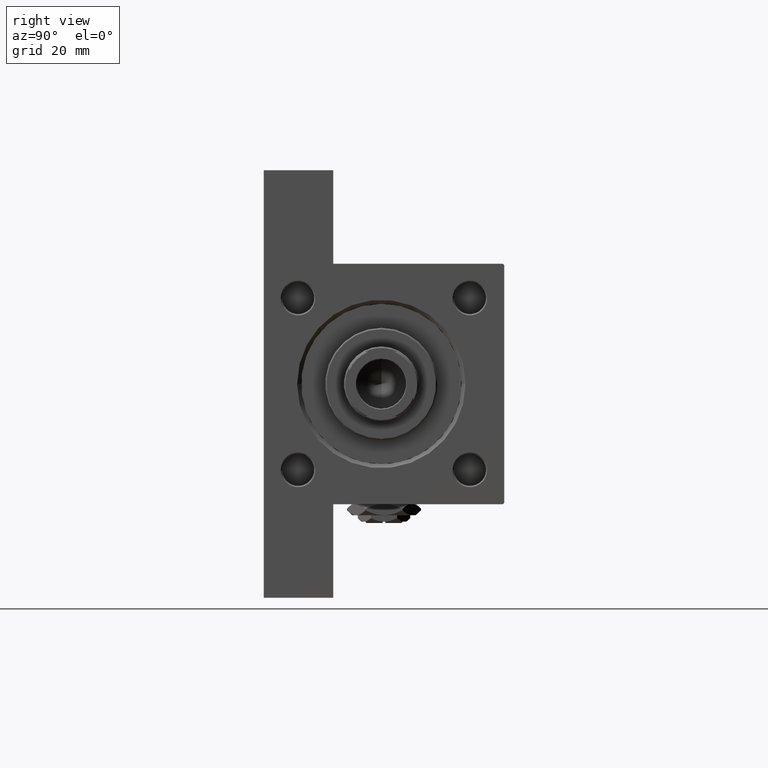
[diagram: clean part render]
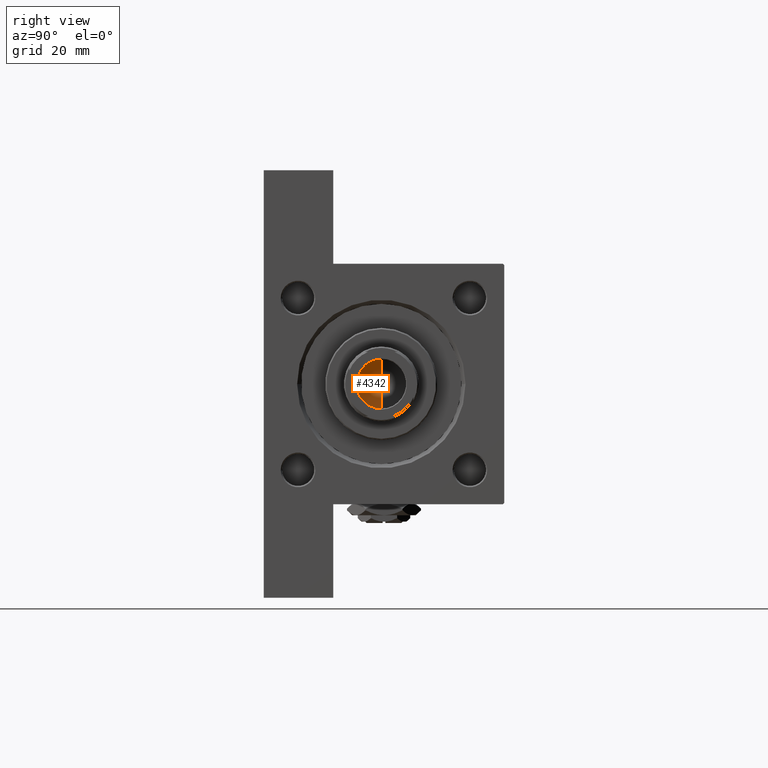
[diagram: same view with one face highlighted and labeled with its STEP entity id]
A machine part, right view. The second image highlights one B-rep face of the part: STEP entity #4342.
In plain terms, the highlighted conical surface has half-angle 59 deg.
Its self-contained STEP definition (entity closure, byte-faithful):
#1545 = AXIS2_PLACEMENT_3D ( 'NONE', #5830, #21184, #20440 ) ;
#3129 = CIRCLE ( 'NONE', #1545, 9.249999999999992895 ) ;
#3609 = VECTOR ( 'NONE', #19634, 1000.000000000000000 ) ;
#4271 = LINE ( 'NONE', #15860, #3609 ) ;
#4342 = ADVANCED_FACE ( 'NONE', ( #29970 ), #19587, .F. ) ;
#5830 = CARTESIAN_POINT ( 'NONE',  ( 0.000000000000000000, 0.000000000000000000, 114.9999999999999858 ) ) ;
#7275 = VERTEX_POINT ( 'NONE', #44915 ) ;
#7597 = DIRECTION ( 'NONE',  ( 1.000000000000000000, 0.000000000000000000, 0.000000000000000000 ) ) ;
#8486 = CARTESIAN_POINT ( 'NONE',  ( -9.249999999999992895, 1.132798289211300712E-15, 114.9999999999999858 ) ) ;
#12873 = ORIENTED_EDGE ( 'NONE', *, *, #45275, .T. ) ;
#15860 = CARTESIAN_POINT ( 'NONE',  ( -9.249999999999992895, 1.132798289211300712E-15, 114.9999999999999858 ) ) ;
#16535 = CARTESIAN_POINT ( 'NONE',  ( 9.249999999999992895, 0.000000000000000000, 114.9999999999999858 ) ) ;
#17315 = EDGE_CURVE ( 'NONE', #7275, #43983, #36119, .T. ) ;
#19587 = CONICAL_SURFACE ( 'NONE', #28385, 9.249999999999992895, 1.029744258676653423 ) ;
#19634 = DIRECTION ( 'NONE',  ( -0.8571673007021117785, 1.049727191138617956E-16, 0.5150380749100550437 ) ) ;
#20294 = ORIENTED_EDGE ( 'NONE', *, *, #23379, .F. ) ;
#20440 = DIRECTION ( 'NONE',  ( 1.000000000000000000, 0.000000000000000000, 0.000000000000000000 ) ) ;
#21184 = DIRECTION ( 'NONE',  ( -0.000000000000000000, -0.000000000000000000, 1.000000000000000000 ) ) ;
#23379 = EDGE_CURVE ( 'NONE', #7275, #39239, #4271, .T. ) ;
#27764 = ORIENTED_EDGE ( 'NONE', *, *, #17315, .T. ) ;
#28385 = AXIS2_PLACEMENT_3D ( 'NONE', #46058, #42032, #7597 ) ;
#29970 = FACE_OUTER_BOUND ( 'NONE', #48089, .T. ) ;
#35873 = DIRECTION ( 'NONE',  ( 0.8571673007021117785, 0.000000000000000000, 0.5150380749100550437 ) ) ;
#36119 = LINE ( 'NONE', #16535, #45297 ) ;
#39239 = VERTEX_POINT ( 'NONE', #8486 ) ;
#42032 = DIRECTION ( 'NONE',  ( -0.000000000000000000, -0.000000000000000000, 1.000000000000000000 ) ) ;
#43075 = CARTESIAN_POINT ( 'NONE',  ( 9.249999999999992895, 0.000000000000000000, 114.9999999999999858 ) ) ;
#43983 = VERTEX_POINT ( 'NONE', #43075 ) ;
#44915 = CARTESIAN_POINT ( 'NONE',  ( -9.769621978240258809E-15, 0.000000000000000000, 109.4420392739950501 ) ) ;
#45275 = EDGE_CURVE ( 'NONE', #43983, #39239, #3129, .T. ) ;
#45297 = VECTOR ( 'NONE', #35873, 1000.000000000000000 ) ;
#46058 = CARTESIAN_POINT ( 'NONE',  ( 0.000000000000000000, 0.000000000000000000, 114.9999999999999858 ) ) ;
#48089 = EDGE_LOOP ( 'NONE', ( #20294, #27764, #12873 ) ) ;